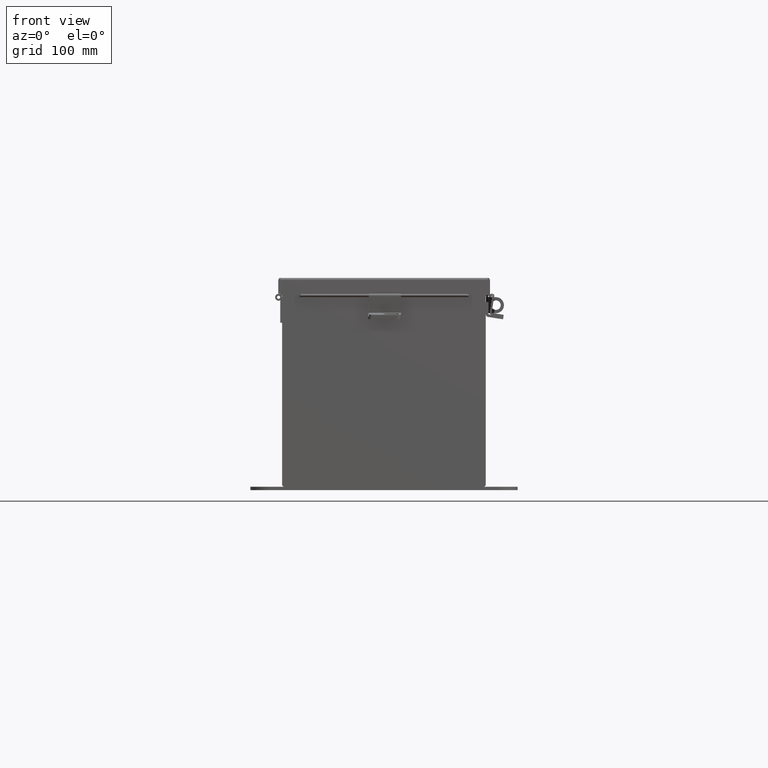
[diagram: clean part render]
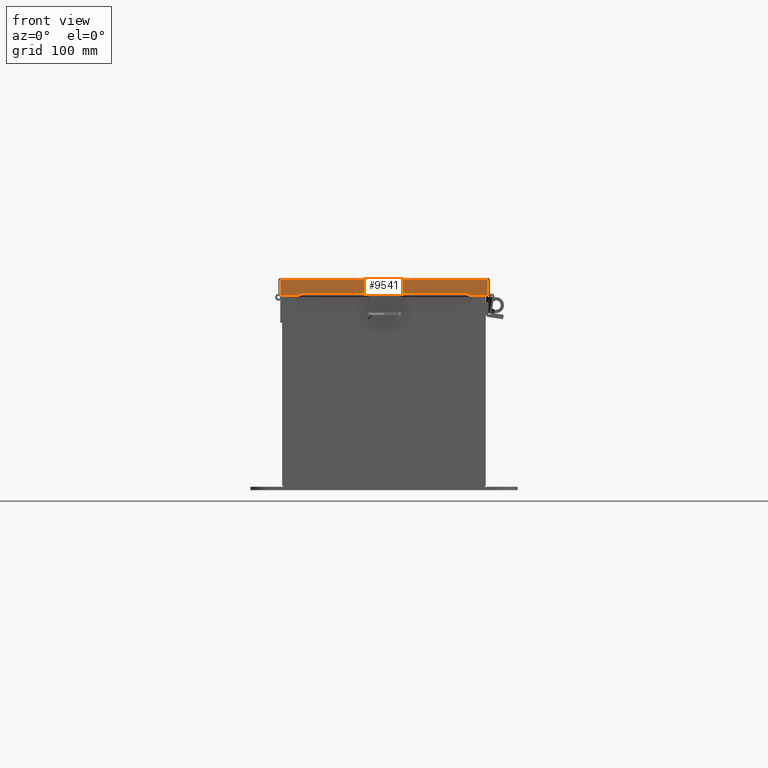
[diagram: same view with one face highlighted and labeled with its STEP entity id]
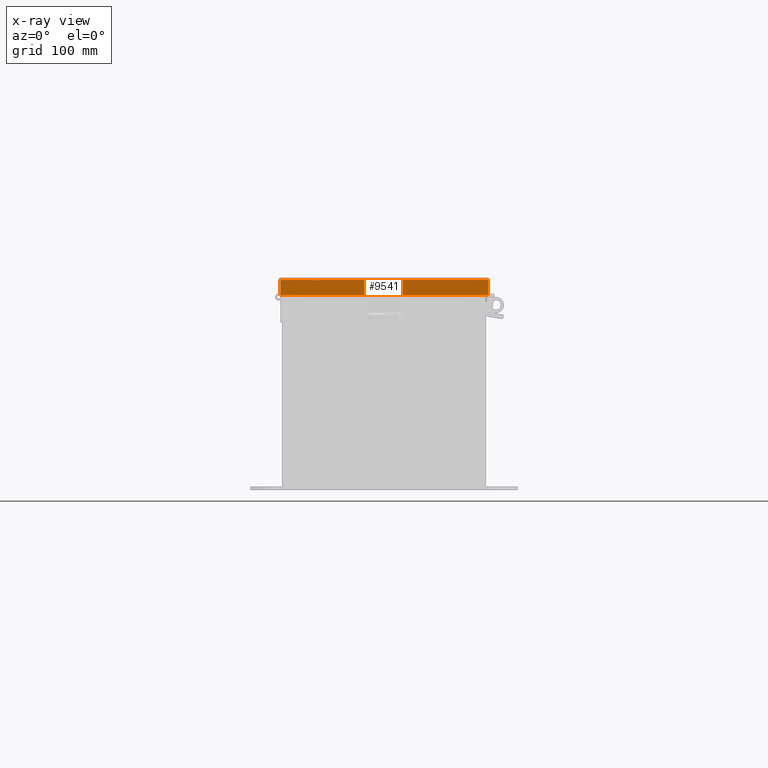
[diagram: x-ray of the same camera — body ghosted, the highlighted face saturated]
A machine part, front view. The second image highlights one B-rep face of the part: STEP entity #9541.
The next image is the same camera in x-ray: the body ghosted, the highlighted face saturated — about 0% of this face is hidden behind the body in this view.
In plain terms, the highlighted planar face has unit normal (0, 1, 0).
Its self-contained STEP definition (entity closure, byte-faithful):
#112 = DIRECTION ( 'NONE',  ( -0.0000000000000000000, -0.0000000000000000000, 1.000000000000000000 ) ) ;
#403 = EDGE_CURVE ( 'NONE', #21086, #21480, #18515, .T. ) ;
#577 = ORIENTED_EDGE ( 'NONE', *, *, #6662, .T. ) ;
#1154 = VECTOR ( 'NONE', #112, 39.37007874015748100 ) ;
#1394 = CARTESIAN_POINT ( 'NONE',  ( 4.074478932188133000, -12.15625000000000200, 0.0000000000000000000 ) ) ;
#1606 = VECTOR ( 'NONE', #8518, 39.37007874015748100 ) ;
#1754 = LINE ( 'NONE', #20520, #17710 ) ;
#2103 = EDGE_CURVE ( 'NONE', #5291, #2990, #5136, .T. ) ;
#2130 = CARTESIAN_POINT ( 'NONE',  ( -4.074478932188133000, -12.15625000000000400, 0.01300000000000010700 ) ) ;
#2241 = VERTEX_POINT ( 'NONE', #16828 ) ;
#2703 = CARTESIAN_POINT ( 'NONE',  ( 3.324478932188130300, -12.15625000000000200, 0.6122999999999994000 ) ) ;
#2954 = EDGE_CURVE ( 'NONE', #21086, #16260, #10607, .T. ) ;
#2990 = VERTEX_POINT ( 'NONE', #4334 ) ;
#3301 = ORIENTED_EDGE ( 'NONE', *, *, #2954, .F. ) ;
#3304 = VECTOR ( 'NONE', #10481, 39.37007874015748100 ) ;
#3903 = FACE_OUTER_BOUND ( 'NONE', #6085, .T. ) ;
#4325 = CARTESIAN_POINT ( 'NONE',  ( 4.074478932188137400, -12.15625000000000200, 0.01299999999999792100 ) ) ;
#4334 = CARTESIAN_POINT ( 'NONE',  ( 3.324478932188136500, -12.15625000000000200, 0.5967115427318815400 ) ) ;
#4383 = VERTEX_POINT ( 'NONE', #2703 ) ;
#4478 = VECTOR ( 'NONE', #6840, 39.37007874015748100 ) ;
#5071 = CARTESIAN_POINT ( 'NONE',  ( -3.324478932188140500, -12.15625000000000200, 0.6123000000000005100 ) ) ;
#5099 = EDGE_CURVE ( 'NONE', #2241, #5291, #22474, .T. ) ;
#5136 = LINE ( 'NONE', #20803, #19330 ) ;
#5291 = VERTEX_POINT ( 'NONE', #12021 ) ;
#5758 = CARTESIAN_POINT ( 'NONE',  ( 3.324478932188136500, -12.15625000000000400, 0.5967115427318815400 ) ) ;
#6085 = EDGE_LOOP ( 'NONE', ( #13546, #577, #13439, #3301, #9100, #13393, #18156, #9387 ) ) ;
#6214 = DIRECTION ( 'NONE',  ( -1.000000000000000000, -2.629146941270870600E-016, 8.216084191471094700E-018 ) ) ;
#6662 = EDGE_CURVE ( 'NONE', #2241, #21658, #1754, .T. ) ;
#6840 = DIRECTION ( 'NONE',  ( -1.000000000000000000, -2.629146941270870600E-016, 8.216084191471094700E-018 ) ) ;
#7249 = EDGE_CURVE ( 'NONE', #16260, #21658, #19482, .T. ) ;
#7557 = VECTOR ( 'NONE', #10185, 39.37007874015748100 ) ;
#8518 = DIRECTION ( 'NONE',  ( 0.0000000000000000000, 1.401985044024309100E-013, 1.000000000000000000 ) ) ;
#9100 = ORIENTED_EDGE ( 'NONE', *, *, #403, .T. ) ;
#9387 = ORIENTED_EDGE ( 'NONE', *, *, #2103, .F. ) ;
#9541 = ADVANCED_FACE ( 'NONE', ( #3903 ), #10277, .F. ) ;
#9799 = EDGE_CURVE ( 'NONE', #21480, #4383, #13160, .T. ) ;
#10185 = DIRECTION ( 'NONE',  ( -1.000000000000000000, -2.629146941270871100E-016, 2.629146941270860700E-016 ) ) ;
#10277 = PLANE ( 'NONE',  #22133 ) ;
#10481 = DIRECTION ( 'NONE',  ( 0.0000000000000000000, 0.0000000000000000000, 1.000000000000000000 ) ) ;
#10607 = LINE ( 'NONE', #16163, #7557 ) ;
#11307 = EDGE_CURVE ( 'NONE', #2990, #4383, #19441, .T. ) ;
#12021 = CARTESIAN_POINT ( 'NONE',  ( -3.324478932188132100, -12.15625000000000200, 0.5967115427318826500 ) ) ;
#12226 = CARTESIAN_POINT ( 'NONE',  ( -4.074478932188138300, -12.15625000000000200, 0.0000000000000000000 ) ) ;
#13160 = LINE ( 'NONE', #15134, #4478 ) ;
#13393 = ORIENTED_EDGE ( 'NONE', *, *, #9799, .T. ) ;
#13439 = ORIENTED_EDGE ( 'NONE', *, *, #7249, .F. ) ;
#13546 = ORIENTED_EDGE ( 'NONE', *, *, #5099, .F. ) ;
#15134 = CARTESIAN_POINT ( 'NONE',  ( 3.200317239452783400E-015, -12.15625000000000200, 0.6123000000000005100 ) ) ;
#16163 = CARTESIAN_POINT ( 'NONE',  ( -4.156249999999998200, -12.15625000000000200, 0.01300000000000010700 ) ) ;
#16260 = VERTEX_POINT ( 'NONE', #2130 ) ;
#16828 = CARTESIAN_POINT ( 'NONE',  ( -3.324478932188140500, -12.15625000000000200, 0.6123000000000005100 ) ) ;
#17109 = CARTESIAN_POINT ( 'NONE',  ( 4.074478932188130300, -12.15625000000000200, 0.6122999999999994000 ) ) ;
#17710 = VECTOR ( 'NONE', #6214, 39.37007874015748100 ) ;
#17783 = CARTESIAN_POINT ( 'NONE',  ( -4.074478932188140100, -12.15625000000000200, 0.6122999999999994000 ) ) ;
#18156 = ORIENTED_EDGE ( 'NONE', *, *, #11307, .F. ) ;
#18515 = LINE ( 'NONE', #1394, #3304 ) ;
#19330 = VECTOR ( 'NONE', #19601, 39.37007874015748100 ) ;
#19441 = LINE ( 'NONE', #5758, #1606 ) ;
#19482 = LINE ( 'NONE', #12226, #1154 ) ;
#19601 = DIRECTION ( 'NONE',  ( 1.000000000000000000, -8.910887686648135600E-033, -0.0000000000000000000 ) ) ;
#20520 = CARTESIAN_POINT ( 'NONE',  ( 3.200317239452783400E-015, -12.15625000000000200, 0.6123000000000005100 ) ) ;
#20803 = CARTESIAN_POINT ( 'NONE',  ( -3.324478932188134300, -12.15625000000000400, 0.5967115427318826500 ) ) ;
#21033 = CARTESIAN_POINT ( 'NONE',  ( 3.207787136310459000E-015, -12.15625000000000200, 0.0000000000000000000 ) ) ;
#21086 = VERTEX_POINT ( 'NONE', #4325 ) ;
#21269 = DIRECTION ( 'NONE',  ( 1.401985044024321400E-013, -1.401985044024321400E-013, -1.000000000000000000 ) ) ;
#21461 = DIRECTION ( 'NONE',  ( -2.629146941270870600E-016, 1.000000000000000000, -3.697785493223492800E-031 ) ) ;
#21480 = VERTEX_POINT ( 'NONE', #17109 ) ;
#21625 = VECTOR ( 'NONE', #21269, 39.37007874015748100 ) ;
#21658 = VERTEX_POINT ( 'NONE', #17783 ) ;
#22133 = AXIS2_PLACEMENT_3D ( 'NONE', #21033, #21461, #22181 ) ;
#22181 = DIRECTION ( 'NONE',  ( -1.000000000000000000, -2.629146941270870600E-016, 0.0000000000000000000 ) ) ;
#22474 = LINE ( 'NONE', #5071, #21625 ) ;